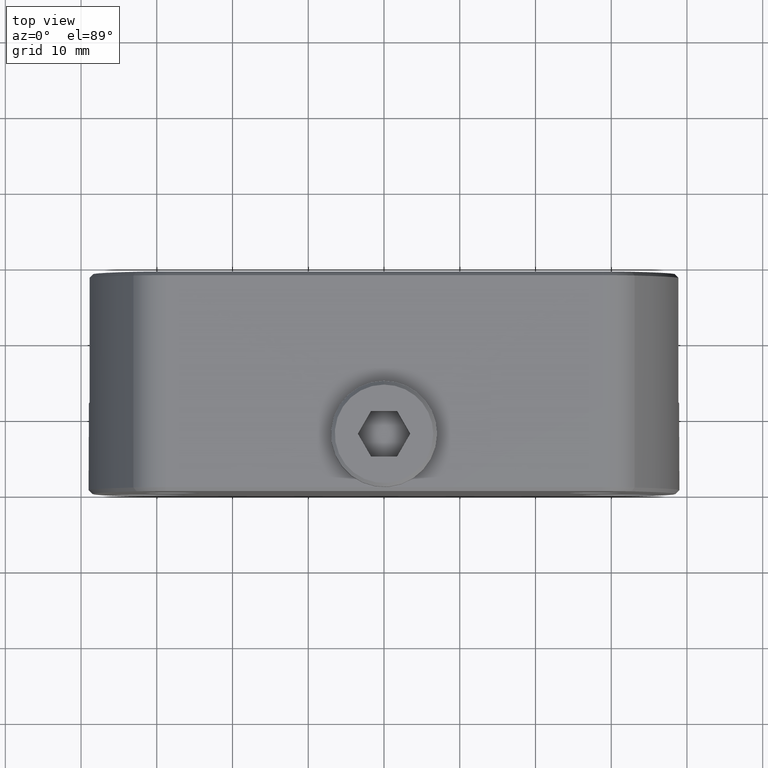
[diagram: clean part render]
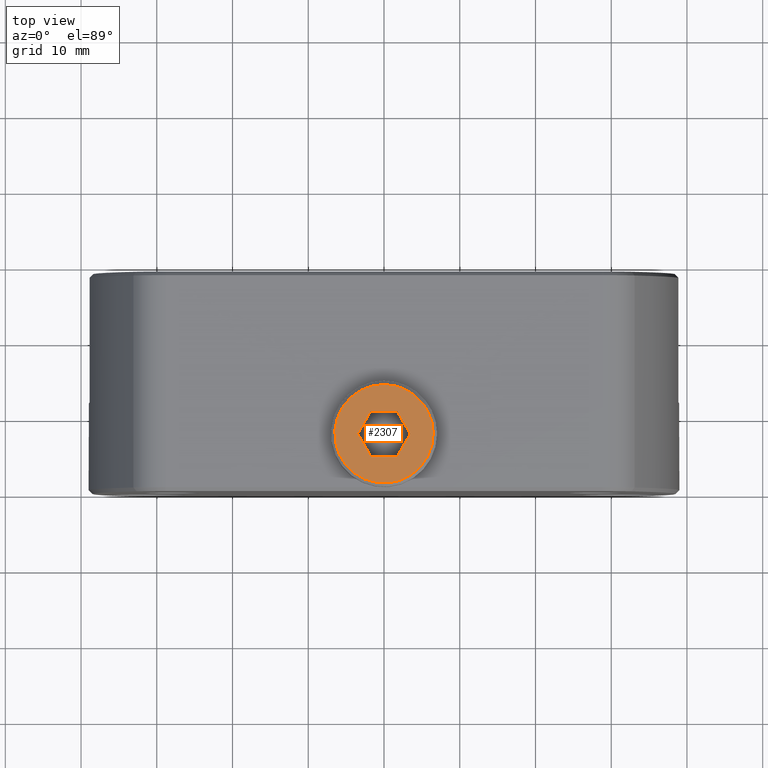
[diagram: same view with one face highlighted and labeled with its STEP entity id]
A machine part, top view. The second image highlights one B-rep face of the part: STEP entity #2307.
In plain terms, the highlighted planar face has unit normal (0, 0, -1).
Its self-contained STEP definition (entity closure, byte-faithful):
#163=FACE_BOUND('',#418,.T.);
#269=FACE_OUTER_BOUND('',#417,.T.);
#417=EDGE_LOOP('',(#2039,#2040));
#418=EDGE_LOOP('',(#2041,#2042,#2043,#2044,#2045,#2046));
#621=CIRCLE('',#2706,6.499999135317);
#622=CIRCLE('',#2707,6.499999135317);
#756=LINE('',#4193,#883);
#757=LINE('',#4195,#884);
#758=LINE('',#4197,#885);
#759=LINE('',#4199,#886);
#760=LINE('',#4201,#887);
#761=LINE('',#4202,#888);
#883=VECTOR('',#3443,3.464101615138);
#884=VECTOR('',#3444,3.46410161513788);
#885=VECTOR('',#3445,3.46410161513788);
#886=VECTOR('',#3446,3.464101615138);
#887=VECTOR('',#3447,3.46410161513788);
#888=VECTOR('',#3448,3.46410161513788);
#1100=VERTEX_POINT('',#4187);
#1101=VERTEX_POINT('',#4188);
#1102=VERTEX_POINT('',#4191);
#1103=VERTEX_POINT('',#4192);
#1104=VERTEX_POINT('',#4194);
#1105=VERTEX_POINT('',#4196);
#1106=VERTEX_POINT('',#4198);
#1107=VERTEX_POINT('',#4200);
#1422=EDGE_CURVE('',#1100,#1101,#621,.T.);
#1423=EDGE_CURVE('',#1101,#1100,#622,.T.);
#1424=EDGE_CURVE('',#1102,#1103,#756,.T.);
#1425=EDGE_CURVE('',#1104,#1102,#757,.T.);
#1426=EDGE_CURVE('',#1105,#1104,#758,.T.);
#1427=EDGE_CURVE('',#1106,#1105,#759,.T.);
#1428=EDGE_CURVE('',#1107,#1106,#760,.T.);
#1429=EDGE_CURVE('',#1103,#1107,#761,.T.);
#2039=ORIENTED_EDGE('',*,*,#1422,.T.);
#2040=ORIENTED_EDGE('',*,*,#1423,.T.);
#2041=ORIENTED_EDGE('',*,*,#1424,.F.);
#2042=ORIENTED_EDGE('',*,*,#1425,.F.);
#2043=ORIENTED_EDGE('',*,*,#1426,.F.);
#2044=ORIENTED_EDGE('',*,*,#1427,.F.);
#2045=ORIENTED_EDGE('',*,*,#1428,.F.);
#2046=ORIENTED_EDGE('',*,*,#1429,.F.);
#2193=PLANE('',#2705);
#2307=ADVANCED_FACE('',(#269,#163),#2193,.F.);
#2705=AXIS2_PLACEMENT_3D('',#4186,#3437,#3438);
#2706=AXIS2_PLACEMENT_3D('',#4189,#3439,#3440);
#2707=AXIS2_PLACEMENT_3D('',#4190,#3441,#3442);
#3437=DIRECTION('center_axis',(0.,-1.,0.));
#3438=DIRECTION('ref_axis',(-1.,0.,0.));
#3439=DIRECTION('center_axis',(0.,1.,0.));
#3440=DIRECTION('ref_axis',(1.,0.,0.));
#3441=DIRECTION('center_axis',(0.,1.,0.));
#3442=DIRECTION('ref_axis',(1.,0.,0.));
#3443=DIRECTION('',(1.,0.,0.));
#3444=DIRECTION('',(0.500000000000017,0.,0.866025403784429));
#3445=DIRECTION('',(-0.500000000000017,0.,0.866025403784429));
#3446=DIRECTION('',(-1.,0.,0.));
#3447=DIRECTION('',(-0.500000000000017,0.,-0.866025403784429));
#3448=DIRECTION('',(0.500000000000017,0.,-0.866025403784429));
#4186=CARTESIAN_POINT('Origin',(0.,8.5,0.));
#4187=CARTESIAN_POINT('',(-6.499999135317,8.499999635503,0.));
#4188=CARTESIAN_POINT('',(-7.96020313552668E-16,8.49999963550312,6.49999913531712));
#4189=CARTESIAN_POINT('Origin',(0.,8.499999635503,0.));
#4190=CARTESIAN_POINT('Origin',(0.,8.499999635503,0.));
#4191=CARTESIAN_POINT('',(-1.732050807569,8.5,3.));
#4192=CARTESIAN_POINT('',(1.732050807569,8.5,3.));
#4193=CARTESIAN_POINT('',(-1.732050807569,8.5,3.));
#4194=CARTESIAN_POINT('',(-3.464101615138,8.5,0.));
#4195=CARTESIAN_POINT('',(-3.464101615138,8.5,0.));
#4196=CARTESIAN_POINT('',(-1.732050807569,8.5,-3.));
#4197=CARTESIAN_POINT('',(-1.732050807569,8.5,-3.));
#4198=CARTESIAN_POINT('',(1.732050807569,8.5,-3.));
#4199=CARTESIAN_POINT('',(1.732050807569,8.5,-3.));
#4200=CARTESIAN_POINT('',(3.464101615138,8.5,0.));
#4201=CARTESIAN_POINT('',(3.464101615138,8.5,0.));
#4202=CARTESIAN_POINT('',(1.732050807569,8.5,3.));